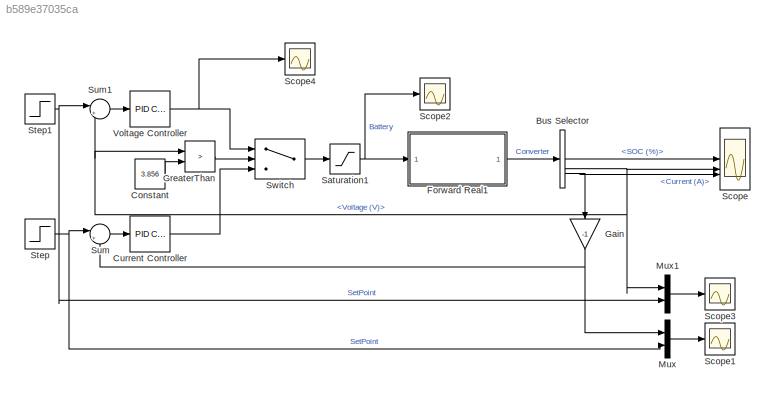
MODEL slx_b589e37035ca
KIND model
CONFIG AbsTol = auto
CONFIG EnableMultiTasking = on
CONFIG FixedStep = auto
CONFIG MaxStep = 1e-4
CONFIG MinStep = auto
CONFIG RelTol = 1e-4
CONFIG SampleTimeConstraint = Unconstrained
CONFIG SolverName = ode23tb
CONFIG StartTime = 0.0
CONFIG StopTime = 6
BLOCK [BusSelector] Bus Selector
  OutputSignals = SOC (%),Voltage (V),Current (A)
BLOCK [Constant] Constant
  Value = 3.856
  VectorParams1D = off
BLOCK [Reference] Current Controller  REF=slpidlib/PID Controller
  LibrarySourceBlock = simulink/Continuous/PID Controller
  SourceBlock = slpidlib/PID Controller
  SourceType = PID 1dof
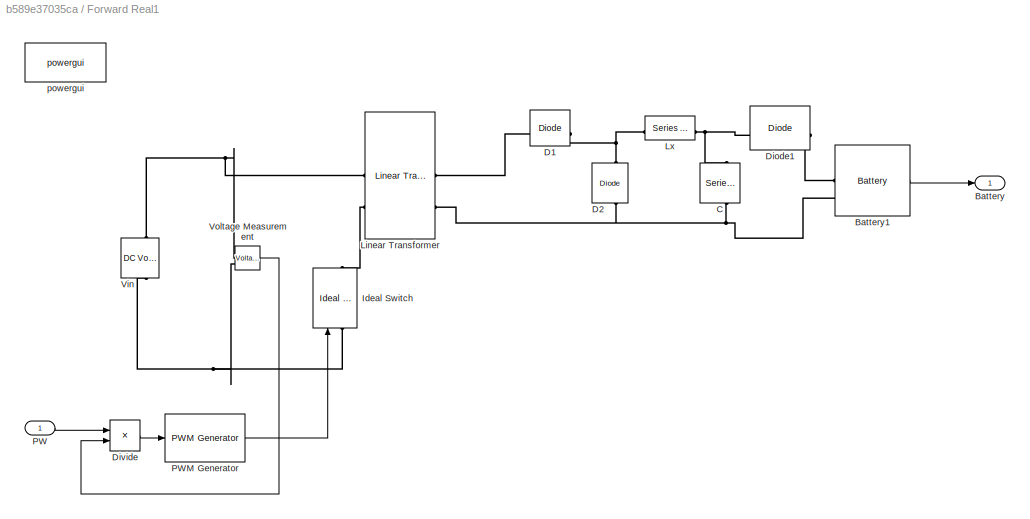
BLOCK [SubSystem] Forward Real1
BLOCK [Outport] Forward Real1/Battery
BLOCK [Reference] Forward Real1/Battery1  REF=spsBatteryLib/Battery
  LibrarySourceBlock = sps_lib/Sources/Battery
  SourceBlock = spsBatteryLib/Battery
  SourceType = Battery
BLOCK [Reference] Forward Real1/C  REF=spsSeriesRLCBranchLib/Series RLC Branch
  LibrarySourceBlock = sps_lib/Passives/Series RLC Branch
  NameLocation = left
  SourceBlock = spsSeriesRLCBranchLib/Series RLC Branch
  SourceType = Series RLC Branch
BLOCK [Reference] Forward Real1/D1  REF=spsDiodeLib/Diode
  LibrarySourceBlock = sps_lib/Power Electronics/Diode
  NameLocation = top
  SourceBlock = spsDiodeLib/Diode
  SourceType = Diode
BLOCK [Reference] Forward Real1/D2  REF=spsDiodeLib/Diode
  LibrarySourceBlock = sps_lib/Power Electronics/Diode
  NameLocation = right
  SourceBlock = spsDiodeLib/Diode
  SourceType = Diode
BLOCK [Reference] Forward Real1/Diode1  REF=spsDiodeLib/Diode
  LibrarySourceBlock = sps_lib/Power Electronics/Diode
  SourceBlock = spsDiodeLib/Diode
  SourceType = Diode
BLOCK [Product] Forward Real1/Divide
  Inputs = */
BLOCK [Reference] Forward Real1/Ideal Switch  REF=spsIdealSwitchLib/Ideal Switch
  LibrarySourceBlock = sps_lib/Power Electronics/Ideal Switch
  NameLocation = right
  SourceBlock = spsIdealSwitchLib/Ideal Switch
  SourceType = Ideal Switch
BLOCK [Reference] Forward Real1/Linear Transformer  REF=spsLinearTransformerLib/Linear Transformer
  LibrarySourceBlock = sps_lib/Power Grid Elements/Linear Transformer
  SourceBlock = spsLinearTransformerLib/Linear Transformer
  SourceType = Linear Transformer
BLOCK [Reference] Forward Real1/Lx  REF=spsSeriesRLCBranchLib/Series RLC Branch
  LibrarySourceBlock = sps_lib/Passives/Series RLC Branch
  SourceBlock = spsSeriesRLCBranchLib/Series RLC Branch
  SourceType = Series RLC Branch
BLOCK [Inport] Forward Real1/PW
BLOCK [Reference] Forward Real1/PWM Generator  REF=eePwmGenerator/PWM Generator
  LibrarySourceBlock = ee_sl_lib/Pulse Width\nModulation/PWM Generator
  SourceBlock = eePwmGenerator/PWM Generator
  SourceType = PWM Generator
BLOCK [Reference] Forward Real1/Vin  REF=spsDCVoltageSourceLib/DC Voltage Source
  LibrarySourceBlock = sps_lib/Sources/DC Voltage Source
  NameLocation = left
  SourceBlock = spsDCVoltageSourceLib/DC Voltage Source
  SourceType = DC Voltage Source
BLOCK [Reference] Forward Real1/Voltage Measurement  REF=spsVoltageMeasurementLib/Voltage Measurement
  LibrarySourceBlock = sps_lib/Sensors and Measurements/Voltage Measurement
  SourceBlock = spsVoltageMeasurementLib/Voltage Measurement
  SourceType = Voltage Measurement
  UserDataPersistent = on
BLOCK [Reference] Forward Real1/powergui  REF=sps_lib/powergui
  LibrarySourceBlock = sps_lib/powergui
  Priority = 1
  SourceBlock = sps_lib/powergui
  SourceType = PSB option menu block
BLOCK [Gain] Gain
  Gain = -1
  NameLocation = right
BLOCK [RelationalOperator] GreaterThan
  InputSameDT = off
  Operator = >
  OutDataTypeStr = boolean
  RndMeth = Simplest
  ZeroCross = off
BLOCK [Mux] Mux
  DisplayOption = bar
  Inputs = 2
BLOCK [Mux] Mux1
  DisplayOption = bar
  Inputs = 2
BLOCK [Saturate] Saturation1
  LowerLimit = 0
  UpperLimit = 24
BLOCK [Scope] Scope
  Floating = off
  NumInputPorts = 3
  ScopeSpecificationString = Simulink.scopes.TimeScopeBlockCfg('CurrentConfiguration', extmgr.ConfigurationSet(extmgr.Configuration('Core','General UI',true,'FigureColor',[1 1 1]),extmgr.Configuration('Core','Source UI',true),extmgr.Configuration('Sources','WiredSimulink',true),extmgr.Configuration('Visuals','Time Domain',true,'SerializedDisplays',{struct('MinYLimReal','99.79748','MaxYLimReal','99.82272','YLabelReal','','MinY...<+3157ch>
BLOCK [Scope] Scope1
  Floating = off
  NumInputPorts = 1
  ScopeSpecificationString = Simulink.scopes.TimeScopeBlockCfg('CurrentConfiguration', extmgr.ConfigurationSet(extmgr.Configuration('Core','General UI',true),extmgr.Configuration('Core','Source UI',true),extmgr.Configuration('Sources','WiredSimulink',true,'DataLoggingVariableName','ScopeData1'),extmgr.Configuration('Visuals','Time Domain',true,'SerializedDisplays',{struct('MinYLimReal','-0.06269','MaxYLimReal','0.56421','YLab...<+1504ch>
BLOCK [Scope] Scope2
  Floating = off
  NumInputPorts = 1
  ScopeSpecificationString = Simulink.scopes.TimeScopeBlockCfg('CurrentConfiguration', extmgr.ConfigurationSet(extmgr.Configuration('Core','General UI',true),extmgr.Configuration('Core','Source UI',true),extmgr.Configuration('Sources','WiredSimulink',true,'DataLoggingVariableName','ScopeData2'),extmgr.Configuration('Visuals','Time Domain',true,'SerializedDisplays',{struct('MinYLimReal','-3.00000','MaxYLimReal','27.00000','YLa...<+1442ch>
BLOCK [Scope] Scope3
  Floating = off
  NumInputPorts = 1
  ScopeSpecificationString = Simulink.scopes.TimeScopeBlockCfg('CurrentConfiguration', extmgr.ConfigurationSet(extmgr.Configuration('Core','General UI',true),extmgr.Configuration('Core','Source UI',true),extmgr.Configuration('Sources','WiredSimulink',true,'DataLoggingVariableName','ScopeData1'),extmgr.Configuration('Visuals','Time Domain',true,'SerializedDisplays',{struct('MinYLimReal','3.35053','MaxYLimReal','3.91216','YLabe...<+1460ch>
BLOCK [Scope] Scope4
  Floating = off
  NumInputPorts = 1
  ScopeSpecificationString = Simulink.scopes.TimeScopeBlockCfg('CurrentConfiguration', extmgr.ConfigurationSet(extmgr.Configuration('Core','General UI',true),extmgr.Configuration('Core','Source UI',true),extmgr.Configuration('Sources','WiredSimulink',true,'DataLoggingVariableName','ScopeData1'),extmgr.Configuration('Visuals','Time Domain',true,'SerializedDisplays',{struct('MinYLimReal','-4.85826','MaxYLimReal','5.24418','YLab...<+1423ch>
BLOCK [Step] Step
  After = 0.3
  SampleTime = 0
  Time = 0
BLOCK [Step] Step1
  After = 3.856
  SampleTime = 0
  Time = 0
BLOCK [Sum] Sum
  Inputs = |+-
BLOCK [Sum] Sum1
  Inputs = |+-
BLOCK [Switch] Switch
  Criteria = u2 > Threshold
  InputSameDT = off
  SaturateOnIntegerOverflow = off
BLOCK [Reference] Voltage Controller  REF=slpidlib/PID Controller
  LibrarySourceBlock = simulink/Continuous/PID Controller
  SourceBlock = slpidlib/PID Controller
  SourceType = PID 1dof
LINE Bus Selector:1 -> Scope:1
NET Bus Selector:2 -> GreaterThan:1, Mux1:1, Scope:2, Sum1:2
NET Bus Selector:3 -> Gain:1, Scope:3
LINE Constant:1 -> GreaterThan:2
LINE Current Controller:1 -> Switch:3
LINE Forward Real1/Battery1:1 -> Forward Real1/Battery:1
LINE Forward Real1/Divide:1 -> Forward Real1/PWM Generator:1
LINE Forward Real1/PW:1 -> Forward Real1/Divide:1
LINE Forward Real1/PWM Generator:1 -> Forward Real1/Ideal Switch:1
LINE Forward Real1/Voltage Measurement:1 -> Forward Real1/Divide:2
LINE Forward Real1:1 -> Bus Selector:1
NET Gain:1 -> Mux:1, Sum:2
LINE GreaterThan:1 -> Switch:2
LINE Mux1:1 -> Scope3:1
LINE Mux:1 -> Scope1:1
NET Saturation1:1 -> Forward Real1:1, Scope2:1
NET Step1:1 -> Mux1:2, Sum1:1
NET Step:1 -> Mux:2, Sum:1
LINE Sum1:1 -> Voltage Controller:1
LINE Sum:1 -> Current Controller:1
LINE Switch:1 -> Saturation1:1
NET Voltage Controller:1 -> Scope4:1, Switch:1
PLINE Forward Real1/Battery1:LConn1 -- Forward Real1/Diode1:RConn1
PNET net1: Forward Real1/Battery1:LConn2 -- Forward Real1/C:RConn1 -- Forward Real1/D2:LConn1 -- Forward Real1/Linear Transformer:RConn2
PNET net2: Forward Real1/C:LConn1 -- Forward Real1/Diode1:LConn1 -- Forward Real1/Lx:RConn1
PLINE Forward Real1/D1:LConn1 -- Forward Real1/Linear Transformer:RConn1
PNET net3: Forward Real1/D1:RConn1 -- Forward Real1/D2:RConn1 -- Forward Real1/Lx:LConn1
PNET net4: Forward Real1/Ideal Switch:LConn1 -- Forward Real1/Vin:LConn1 -- Forward Real1/Voltage Measurement:LConn2
PLINE Forward Real1/Ideal Switch:RConn1 -- Forward Real1/Linear Transformer:LConn2
PNET net5: Forward Real1/Linear Transformer:LConn1 -- Forward Real1/Vin:RConn1 -- Forward Real1/Voltage Measurement:LConn1
note: NET lines group one-source signal fan-out (src -> all destinations, sorted); 1:1 wires keep LINE; PNET lines group multi-terminal physical nets as a canonical sorted terminal list (undirected conserving connections); 2-terminal nets keep the pairwise PLINE form
